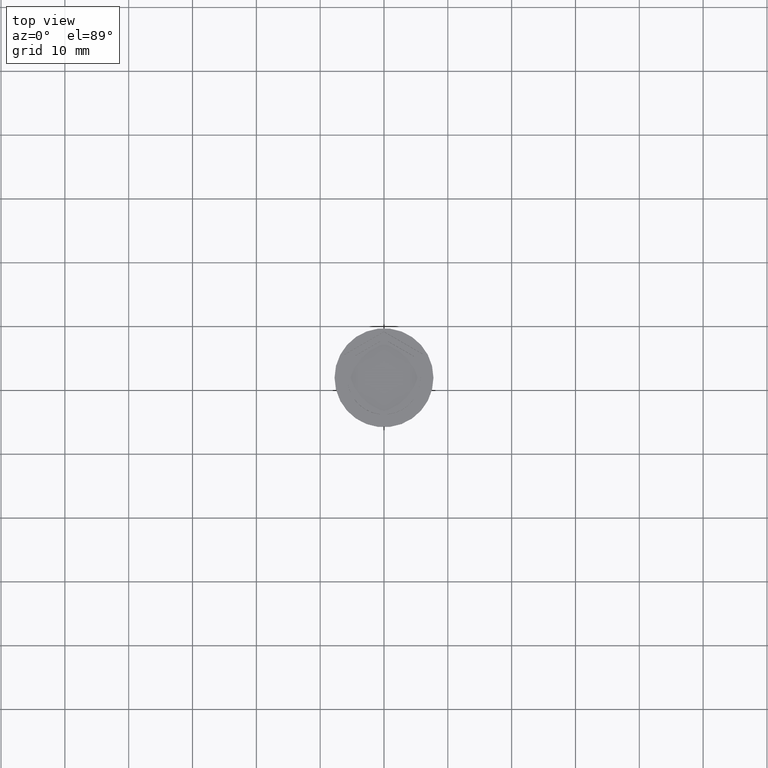
[diagram: clean part render]
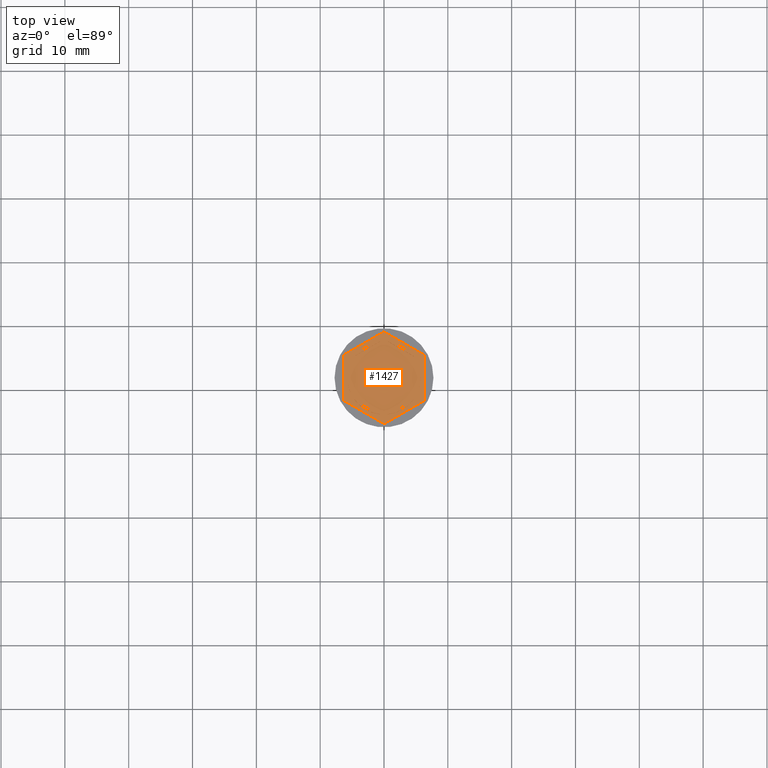
[diagram: same view with one face highlighted and labeled with its STEP entity id]
A machine part, top view. The second image highlights one B-rep face of the part: STEP entity #1427.
In plain terms, the highlighted planar face has unit normal (0, 0, 1).
Its self-contained STEP definition (entity closure, byte-faithful):
#13 = DIRECTION ( 'NONE',  ( 0.000000000000000000, -1.000000000000000000, 0.000000000000000000 ) ) ;
#20 = EDGE_CURVE ( 'NONE', #2046, #82, #155, .T. ) ;
#23 = EDGE_CURVE ( 'NONE', #976, #1786, #514, .T. ) ;
#28 = DIRECTION ( 'NONE',  ( 2.403703357979454647E-16, 1.000000000000000000, 0.000000000000000000 ) ) ;
#34 = VECTOR ( 'NONE', #2332, 1000.000000000000114 ) ;
#47 = EDGE_LOOP ( 'NONE', ( #1668, #1326 ) ) ;
#56 = DIRECTION ( 'NONE',  ( 1.000000000000000000, 0.000000000000000000, -0.000000000000000000 ) ) ;
#82 = VERTEX_POINT ( 'NONE', #1781 ) ;
#85 = EDGE_CURVE ( 'NONE', #1550, #674, #1017, .T. ) ;
#97 = CARTESIAN_POINT ( 'NONE',  ( 0.5939903988410126789, 5.719237309824160675, -1.000000000000000888 ) ) ;
#124 = AXIS2_PLACEMENT_3D ( 'NONE', #430, #1860, #961 ) ;
#138 = CARTESIAN_POINT ( 'NONE',  ( -4.656009601158989319, 3.374029429912446698, -1.000000000000000888 ) ) ;
#144 = AXIS2_PLACEMENT_3D ( 'NONE', #185, #663, #1921 ) ;
#146 = CARTESIAN_POINT ( 'NONE',  ( -1.734723475976807094E-15, -6.062177826491069510, -1.000000000000000888 ) ) ;
#155 = LINE ( 'NONE', #871, #1166 ) ;
#157 = LINE ( 'NONE', #171, #1014 ) ;
#171 = CARTESIAN_POINT ( 'NONE',  ( -5.249999999999999112, 3.031088913245535199, -1.000000000000000888 ) ) ;
#174 = ORIENTED_EDGE ( 'NONE', *, *, #1419, .F. ) ;
#185 = CARTESIAN_POINT ( 'NONE',  ( 0.000000000000000000, 0.000000000000000000, -1.000000000000000000 ) ) ;
#200 = VERTEX_POINT ( 'NONE', #1982 ) ;
#210 = CARTESIAN_POINT ( 'NONE',  ( -6.249999999999999112, 3.608439182435158710, -1.000000000000000000 ) ) ;
#216 = CARTESIAN_POINT ( 'NONE',  ( 5.249999999999997335, 3.031088913245537864, -1.000000000000000888 ) ) ;
#218 = ORIENTED_EDGE ( 'NONE', *, *, #1153, .F. ) ;
#229 = CIRCLE ( 'NONE', #664, 5.750000000000000000 ) ;
#231 = DIRECTION ( 'NONE',  ( 0.000000000000000000, 0.000000000000000000, 1.000000000000000000 ) ) ;
#249 = DIRECTION ( 'NONE',  ( 0.8660254037844387076, -0.4999999999999998335, 0.000000000000000000 ) ) ;
#256 = FACE_BOUND ( 'NONE', #47, .T. ) ;
#266 = EDGE_CURVE ( 'NONE', #992, #1550, #157, .T. ) ;
#267 = CARTESIAN_POINT ( 'NONE',  ( -5.249999999999999112, -2.345207879911715310, -1.000000000000000888 ) ) ;
#306 = DIRECTION ( 'NONE',  ( 1.000000000000000000, 0.000000000000000000, 0.000000000000000000 ) ) ;
#400 = EDGE_CURVE ( 'NONE', #1758, #1698, #564, .T. ) ;
#410 = EDGE_CURVE ( 'NONE', #1032, #200, #229, .T. ) ;
#418 = VECTOR ( 'NONE', #1406, 1000.000000000000114 ) ;
#422 = LINE ( 'NONE', #210, #1088 ) ;
#427 = VECTOR ( 'NONE', #249, 1000.000000000000114 ) ;
#430 = CARTESIAN_POINT ( 'NONE',  ( 0.000000000000000000, 0.000000000000000000, -1.000000000000000000 ) ) ;
#433 = FACE_BOUND ( 'NONE', #2267, .T. ) ;
#441 = CARTESIAN_POINT ( 'NONE',  ( 0.000000000000000000, 7.216878364870320084, -1.000000000000000000 ) ) ;
#458 = ORIENTED_EDGE ( 'NONE', *, *, #2327, .F. ) ;
#467 = ORIENTED_EDGE ( 'NONE', *, *, #85, .F. ) ;
#496 = VECTOR ( 'NONE', #1891, 1000.000000000000000 ) ;
#501 = EDGE_CURVE ( 'NONE', #82, #2046, #1546, .T. ) ;
#514 = LINE ( 'NONE', #1237, #418 ) ;
#521 = AXIS2_PLACEMENT_3D ( 'NONE', #1844, #231, #943 ) ;
#546 = LINE ( 'NONE', #1055, #1069 ) ;
#564 = LINE ( 'NONE', #1667, #1505 ) ;
#590 = CIRCLE ( 'NONE', #1318, 5.750000000000000000 ) ;
#591 = DIRECTION ( 'NONE',  ( 0.8660254037844385966, 0.5000000000000001110, 0.000000000000000000 ) ) ;
#599 = EDGE_CURVE ( 'NONE', #838, #1513, #1184, .T. ) ;
#621 = CARTESIAN_POINT ( 'NONE',  ( 0.000000000000000000, 0.000000000000000000, -1.000000000000000000 ) ) ;
#630 = ORIENTED_EDGE ( 'NONE', *, *, #1191, .T. ) ;
#632 = ORIENTED_EDGE ( 'NONE', *, *, #1240, .T. ) ;
#663 = DIRECTION ( 'NONE',  ( 0.000000000000000000, 0.000000000000000000, 1.000000000000000000 ) ) ;
#664 = AXIS2_PLACEMENT_3D ( 'NONE', #1265, #2162, #713 ) ;
#674 = VERTEX_POINT ( 'NONE', #867 ) ;
#695 = CARTESIAN_POINT ( 'NONE',  ( 6.250000000000000000, 3.608439182435161374, -1.000000000000000000 ) ) ;
#708 = VECTOR ( 'NONE', #1739, 1000.000000000000227 ) ;
#713 = DIRECTION ( 'NONE',  ( 1.000000000000000000, 0.000000000000000000, 0.000000000000000000 ) ) ;
#728 = ORIENTED_EDGE ( 'NONE', *, *, #2177, .F. ) ;
#838 = VERTEX_POINT ( 'NONE', #1637 ) ;
#867 = CARTESIAN_POINT ( 'NONE',  ( -5.750000000000000000, 0.000000000000000000, -1.000000000000000000 ) ) ;
#871 = CARTESIAN_POINT ( 'NONE',  ( 8.673617379884035472E-16, 6.062177826491070398, -1.000000000000000888 ) ) ;
#875 = LINE ( 'NONE', #1242, #895 ) ;
#880 = CARTESIAN_POINT ( 'NONE',  ( 0.000000000000000000, 0.000000000000000000, -1.000000000000000000 ) ) ;
#895 = VECTOR ( 'NONE', #1961, 1000.000000000000000 ) ;
#904 = AXIS2_PLACEMENT_3D ( 'NONE', #880, #1605, #1643 ) ;
#917 = CARTESIAN_POINT ( 'NONE',  ( -6.249999999999999112, 3.608439182435158710, -1.000000000000000000 ) ) ;
#930 = FACE_BOUND ( 'NONE', #1186, .T. ) ;
#937 = CIRCLE ( 'NONE', #1315, 5.750000000000000000 ) ;
#940 = FACE_BOUND ( 'NONE', #1886, .T. ) ;
#943 = DIRECTION ( 'NONE',  ( 1.000000000000000000, 0.000000000000000000, 0.000000000000000000 ) ) ;
#961 = DIRECTION ( 'NONE',  ( 1.000000000000000000, 0.000000000000000000, 0.000000000000000000 ) ) ;
#962 = PLANE ( 'NONE',  #1990 ) ;
#976 = VERTEX_POINT ( 'NONE', #441 ) ;
#988 = ORIENTED_EDGE ( 'NONE', *, *, #1548, .F. ) ;
#992 = VERTEX_POINT ( 'NONE', #267 ) ;
#1009 = VERTEX_POINT ( 'NONE', #97 ) ;
#1014 = VECTOR ( 'NONE', #1077, 1000.000000000000000 ) ;
#1017 = CIRCLE ( 'NONE', #904, 5.750000000000000000 ) ;
#1019 = CARTESIAN_POINT ( 'NONE',  ( 6.250000000000000000, 3.608439182435161374, -1.000000000000000000 ) ) ;
#1032 = VERTEX_POINT ( 'NONE', #2086 ) ;
#1051 = ORIENTED_EDGE ( 'NONE', *, *, #20, .F. ) ;
#1055 = CARTESIAN_POINT ( 'NONE',  ( -5.249999999999999112, -3.031088913245534311, -1.000000000000000888 ) ) ;
#1069 = VECTOR ( 'NONE', #1777, 1000.000000000000114 ) ;
#1077 = DIRECTION ( 'NONE',  ( 0.000000000000000000, 1.000000000000000000, 0.000000000000000000 ) ) ;
#1088 = VECTOR ( 'NONE', #13, 1000.000000000000000 ) ;
#1098 = EDGE_CURVE ( 'NONE', #2098, #1164, #1840, .T. ) ;
#1104 = CARTESIAN_POINT ( 'NONE',  ( 8.729740977282959667E-16, -7.216878364870321860, -1.000000000000000000 ) ) ;
#1114 = LINE ( 'NONE', #216, #427 ) ;
#1117 = ORIENTED_EDGE ( 'NONE', *, *, #1867, .F. ) ;
#1132 = ORIENTED_EDGE ( 'NONE', *, *, #400, .T. ) ;
#1153 = EDGE_CURVE ( 'NONE', #1267, #1612, #1746, .T. ) ;
#1164 = VERTEX_POINT ( 'NONE', #1586 ) ;
#1166 = VECTOR ( 'NONE', #1431, 1000.000000000000000 ) ;
#1172 = EDGE_CURVE ( 'NONE', #1164, #2098, #875, .T. ) ;
#1184 = LINE ( 'NONE', #2066, #708 ) ;
#1186 = EDGE_LOOP ( 'NONE', ( #467, #1986, #174 ) ) ;
#1190 = ORIENTED_EDGE ( 'NONE', *, *, #23, .T. ) ;
#1191 = EDGE_CURVE ( 'NONE', #1513, #1758, #1266, .T. ) ;
#1196 = CARTESIAN_POINT ( 'NONE',  ( 4.656009601158988431, 3.374029429912448919, -1.000000000000000888 ) ) ;
#1233 = CARTESIAN_POINT ( 'NONE',  ( 5.249999999999997335, -2.345207879911720639, -1.000000000000000888 ) ) ;
#1237 = CARTESIAN_POINT ( 'NONE',  ( 0.000000000000000000, 7.216878364870320084, -1.000000000000000000 ) ) ;
#1240 = EDGE_CURVE ( 'NONE', #1786, #838, #422, .T. ) ;
#1242 = CARTESIAN_POINT ( 'NONE',  ( 5.249999999999996447, -3.031088913245536975, -1.000000000000000888 ) ) ;
#1265 = CARTESIAN_POINT ( 'NONE',  ( 0.000000000000000000, 0.000000000000000000, -1.000000000000000000 ) ) ;
#1266 = LINE ( 'NONE', #1104, #2219 ) ;
#1267 = VERTEX_POINT ( 'NONE', #1446 ) ;
#1315 = AXIS2_PLACEMENT_3D ( 'NONE', #2055, #1322, #1497 ) ;
#1318 = AXIS2_PLACEMENT_3D ( 'NONE', #621, #1366, #306 ) ;
#1322 = DIRECTION ( 'NONE',  ( 0.000000000000000000, 0.000000000000000000, 1.000000000000000000 ) ) ;
#1326 = ORIENTED_EDGE ( 'NONE', *, *, #1172, .F. ) ;
#1335 = EDGE_LOOP ( 'NONE', ( #988, #458 ) ) ;
#1366 = DIRECTION ( 'NONE',  ( 0.000000000000000000, 0.000000000000000000, 1.000000000000000000 ) ) ;
#1406 = DIRECTION ( 'NONE',  ( -0.8660254037844385966, -0.5000000000000001110, 0.000000000000000000 ) ) ;
#1419 = EDGE_CURVE ( 'NONE', #674, #992, #937, .T. ) ;
#1427 = ADVANCED_FACE ( 'NONE', ( #1697, #256, #940, #433, #930, #2045, #1663 ), #962, .T. ) ;
#1431 = DIRECTION ( 'NONE',  ( 0.8660254037844387076, 0.4999999999999999445, -0.000000000000000000 ) ) ;
#1446 = CARTESIAN_POINT ( 'NONE',  ( 4.656009601158990208, -3.374029429912445810, -1.000000000000000888 ) ) ;
#1497 = DIRECTION ( 'NONE',  ( 1.000000000000000000, 0.000000000000000000, 0.000000000000000000 ) ) ;
#1505 = VECTOR ( 'NONE', #28, 1000.000000000000000 ) ;
#1513 = VERTEX_POINT ( 'NONE', #2291 ) ;
#1538 = VERTEX_POINT ( 'NONE', #1196 ) ;
#1546 = CIRCLE ( 'NONE', #521, 5.750000000000000000 ) ;
#1547 = CARTESIAN_POINT ( 'NONE',  ( -5.249999999999999112, 2.345207879911715310, -1.000000000000000888 ) ) ;
#1548 = EDGE_CURVE ( 'NONE', #1538, #1009, #590, .T. ) ;
#1550 = VERTEX_POINT ( 'NONE', #1547 ) ;
#1586 = CARTESIAN_POINT ( 'NONE',  ( 5.249999999999997335, 2.345207879911718862, -1.000000000000000888 ) ) ;
#1605 = DIRECTION ( 'NONE',  ( 0.000000000000000000, 0.000000000000000000, 1.000000000000000000 ) ) ;
#1612 = VERTEX_POINT ( 'NONE', #1740 ) ;
#1637 = CARTESIAN_POINT ( 'NONE',  ( -6.249999999999999112, -3.608439182435161374, -1.000000000000000000 ) ) ;
#1643 = DIRECTION ( 'NONE',  ( 1.000000000000000000, 0.000000000000000000, 0.000000000000000000 ) ) ;
#1650 = CARTESIAN_POINT ( 'NONE',  ( 0.000000000000000000, 0.000000000000000000, -1.000000000000000000 ) ) ;
#1663 = FACE_OUTER_BOUND ( 'NONE', #2026, .T. ) ;
#1667 = CARTESIAN_POINT ( 'NONE',  ( 6.249999999999998224, -3.608439182435161374, -1.000000000000000000 ) ) ;
#1668 = ORIENTED_EDGE ( 'NONE', *, *, #1098, .F. ) ;
#1697 = FACE_BOUND ( 'NONE', #1335, .T. ) ;
#1698 = VERTEX_POINT ( 'NONE', #695 ) ;
#1704 = LINE ( 'NONE', #1019, #496 ) ;
#1739 = DIRECTION ( 'NONE',  ( 0.8660254037844385966, -0.4999999999999998890, 0.000000000000000000 ) ) ;
#1740 = CARTESIAN_POINT ( 'NONE',  ( 0.5939903988410074609, -5.719237309824160675, -1.000000000000000888 ) ) ;
#1746 = LINE ( 'NONE', #146, #34 ) ;
#1748 = ORIENTED_EDGE ( 'NONE', *, *, #1965, .T. ) ;
#1758 = VERTEX_POINT ( 'NONE', #2168 ) ;
#1777 = DIRECTION ( 'NONE',  ( -0.8660254037844384856, 0.5000000000000002220, 0.000000000000000000 ) ) ;
#1781 = CARTESIAN_POINT ( 'NONE',  ( -0.5939903988410105695, 5.719237309824159787, -1.000000000000000888 ) ) ;
#1786 = VERTEX_POINT ( 'NONE', #917 ) ;
#1840 = CIRCLE ( 'NONE', #144, 5.750000000000000000 ) ;
#1844 = CARTESIAN_POINT ( 'NONE',  ( 0.000000000000000000, 0.000000000000000000, -1.000000000000000000 ) ) ;
#1860 = DIRECTION ( 'NONE',  ( 0.000000000000000000, 0.000000000000000000, 1.000000000000000000 ) ) ;
#1867 = EDGE_CURVE ( 'NONE', #1612, #1267, #2043, .T. ) ;
#1886 = EDGE_LOOP ( 'NONE', ( #1117, #218 ) ) ;
#1891 = DIRECTION ( 'NONE',  ( -0.8660254037844388186, 0.4999999999999997224, 0.000000000000000000 ) ) ;
#1921 = DIRECTION ( 'NONE',  ( 1.000000000000000000, 0.000000000000000000, 0.000000000000000000 ) ) ;
#1961 = DIRECTION ( 'NONE',  ( -1.430775808321103440E-16, -1.000000000000000000, 0.000000000000000000 ) ) ;
#1965 = EDGE_CURVE ( 'NONE', #1698, #976, #1704, .T. ) ;
#1982 = CARTESIAN_POINT ( 'NONE',  ( -0.5939903988410105695, -5.719237309824160675, -1.000000000000000888 ) ) ;
#1986 = ORIENTED_EDGE ( 'NONE', *, *, #266, .F. ) ;
#1990 = AXIS2_PLACEMENT_3D ( 'NONE', #1650, #2013, #56 ) ;
#2013 = DIRECTION ( 'NONE',  ( 0.000000000000000000, 0.000000000000000000, 1.000000000000000000 ) ) ;
#2024 = ORIENTED_EDGE ( 'NONE', *, *, #599, .T. ) ;
#2026 = EDGE_LOOP ( 'NONE', ( #1748, #1190, #632, #2024, #630, #1132 ) ) ;
#2043 = CIRCLE ( 'NONE', #124, 5.750000000000000000 ) ;
#2045 = FACE_BOUND ( 'NONE', #2070, .T. ) ;
#2046 = VERTEX_POINT ( 'NONE', #138 ) ;
#2055 = CARTESIAN_POINT ( 'NONE',  ( 0.000000000000000000, 0.000000000000000000, -1.000000000000000000 ) ) ;
#2066 = CARTESIAN_POINT ( 'NONE',  ( -6.249999999999999112, -3.608439182435161374, -1.000000000000000000 ) ) ;
#2070 = EDGE_LOOP ( 'NONE', ( #2253, #1051 ) ) ;
#2084 = ORIENTED_EDGE ( 'NONE', *, *, #410, .F. ) ;
#2086 = CARTESIAN_POINT ( 'NONE',  ( -4.656009601158991096, -3.374029429912444034, -1.000000000000000888 ) ) ;
#2098 = VERTEX_POINT ( 'NONE', #1233 ) ;
#2162 = DIRECTION ( 'NONE',  ( 0.000000000000000000, 0.000000000000000000, 1.000000000000000000 ) ) ;
#2168 = CARTESIAN_POINT ( 'NONE',  ( 6.249999999999998224, -3.608439182435161374, -1.000000000000000000 ) ) ;
#2177 = EDGE_CURVE ( 'NONE', #200, #1032, #546, .T. ) ;
#2219 = VECTOR ( 'NONE', #591, 1000.000000000000000 ) ;
#2253 = ORIENTED_EDGE ( 'NONE', *, *, #501, .F. ) ;
#2267 = EDGE_LOOP ( 'NONE', ( #2084, #728 ) ) ;
#2291 = CARTESIAN_POINT ( 'NONE',  ( 8.729740977282959667E-16, -7.216878364870321860, -1.000000000000000000 ) ) ;
#2327 = EDGE_CURVE ( 'NONE', #1009, #1538, #1114, .T. ) ;
#2332 = DIRECTION ( 'NONE',  ( -0.8660254037844387076, -0.4999999999999997224, 0.000000000000000000 ) ) ;